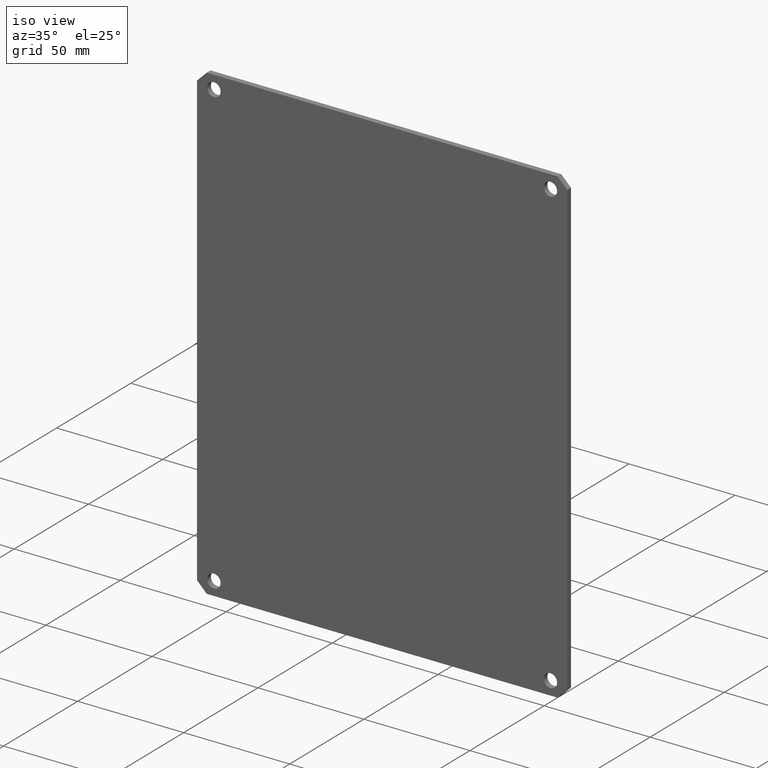
[diagram: clean part render]
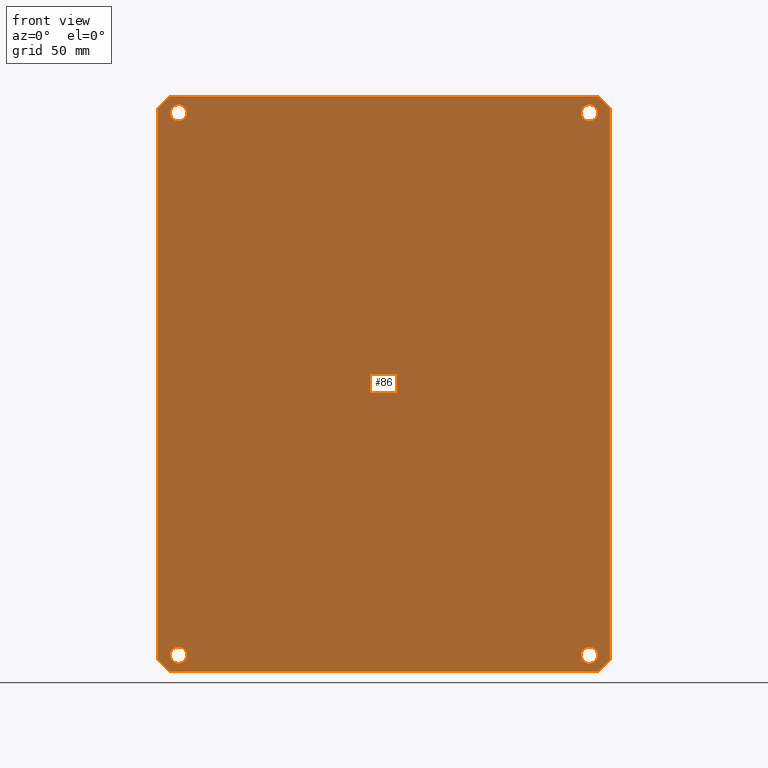
[diagram: tour spotlight — one face highlighted and labeled with its STEP entity id]
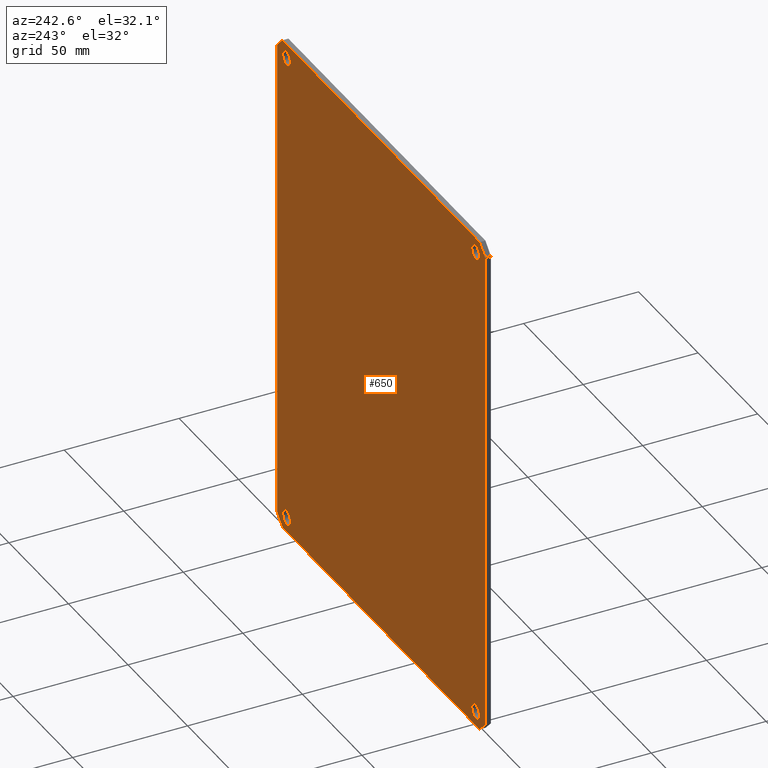
[diagram: tour spotlight — one face highlighted and labeled with its STEP entity id]
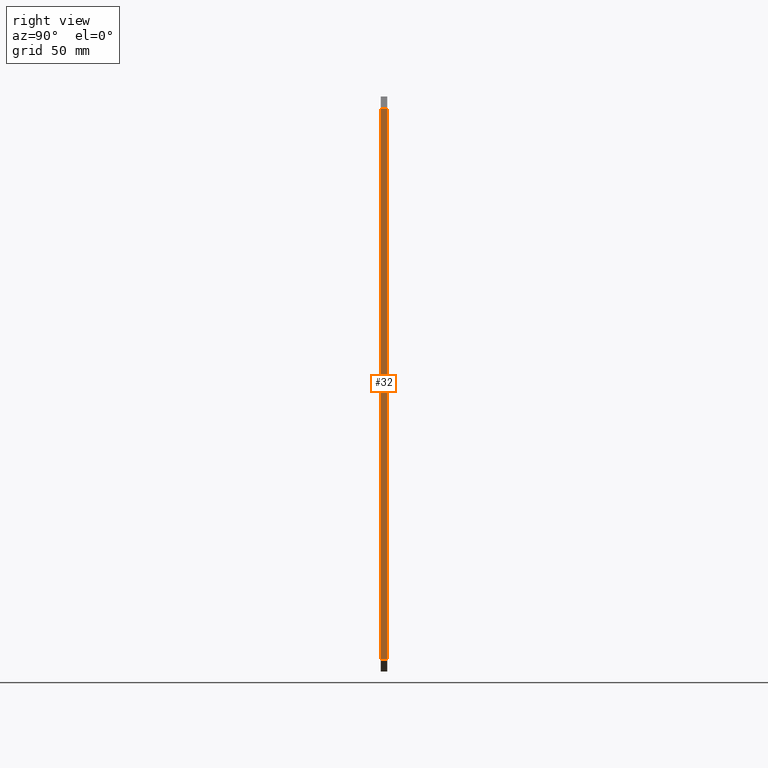
[diagram: tour spotlight — one face highlighted and labeled with its STEP entity id]
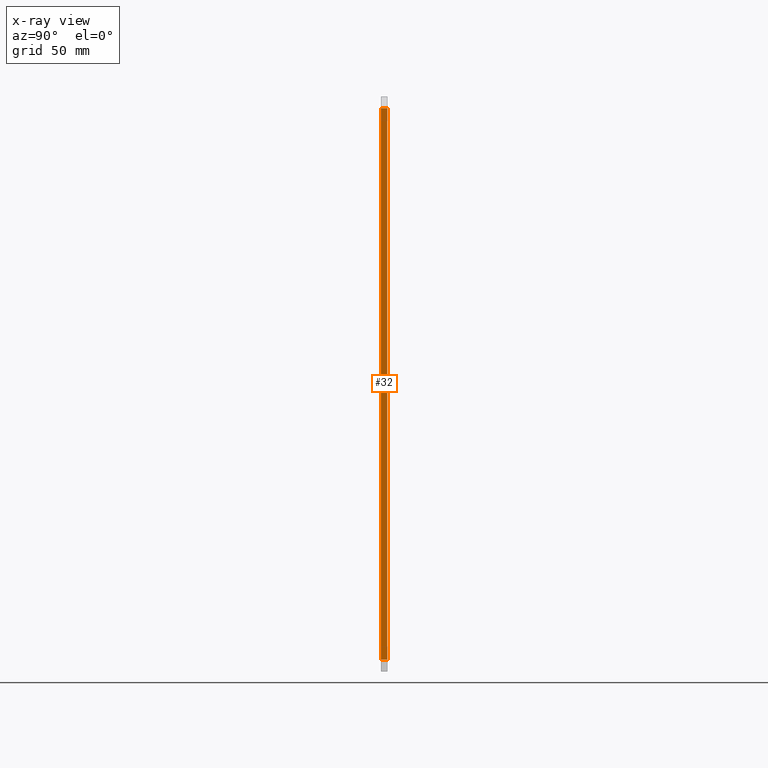
[diagram: x-ray of the same camera — body ghosted, this tour face saturated]
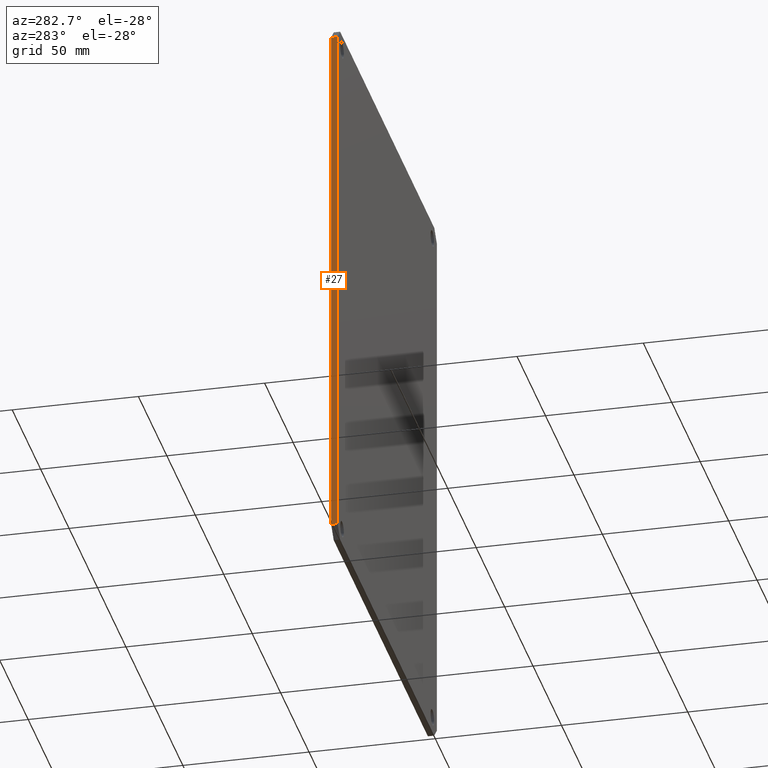
[diagram: tour spotlight — one face highlighted and labeled with its STEP entity id]
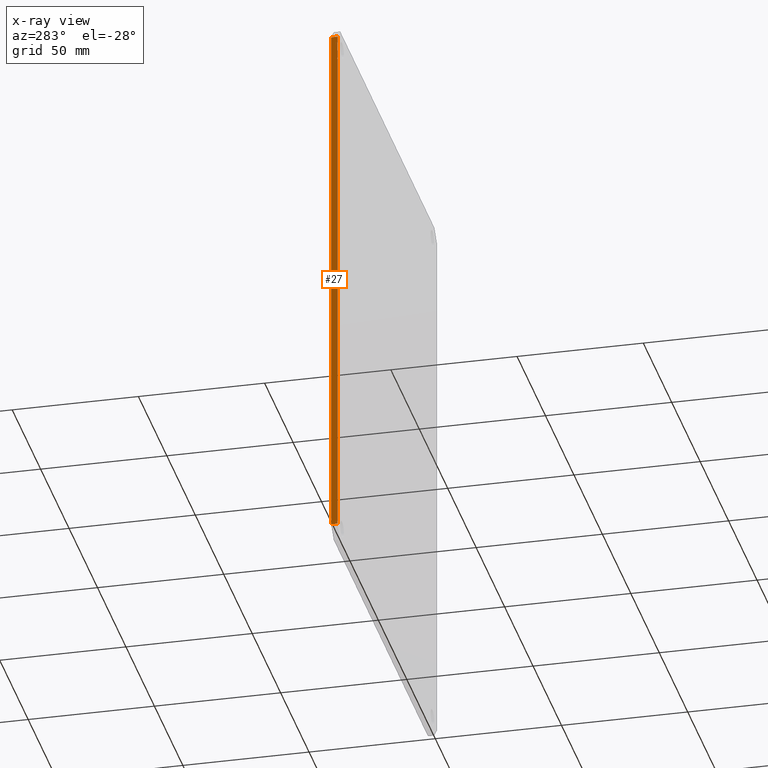
[diagram: x-ray of the same camera — body ghosted, this tour face saturated]
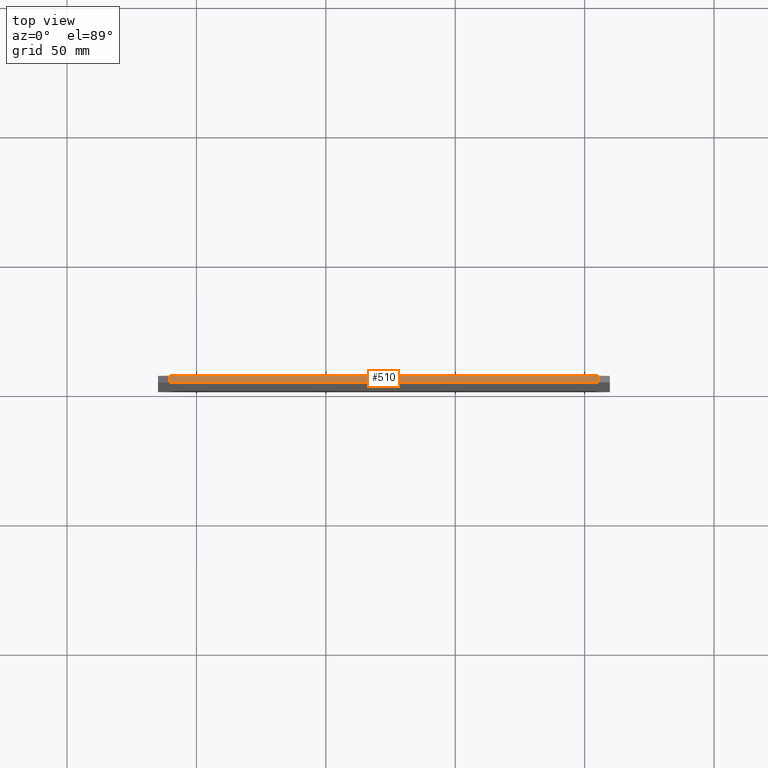
[diagram: tour spotlight — one face highlighted and labeled with its STEP entity id]
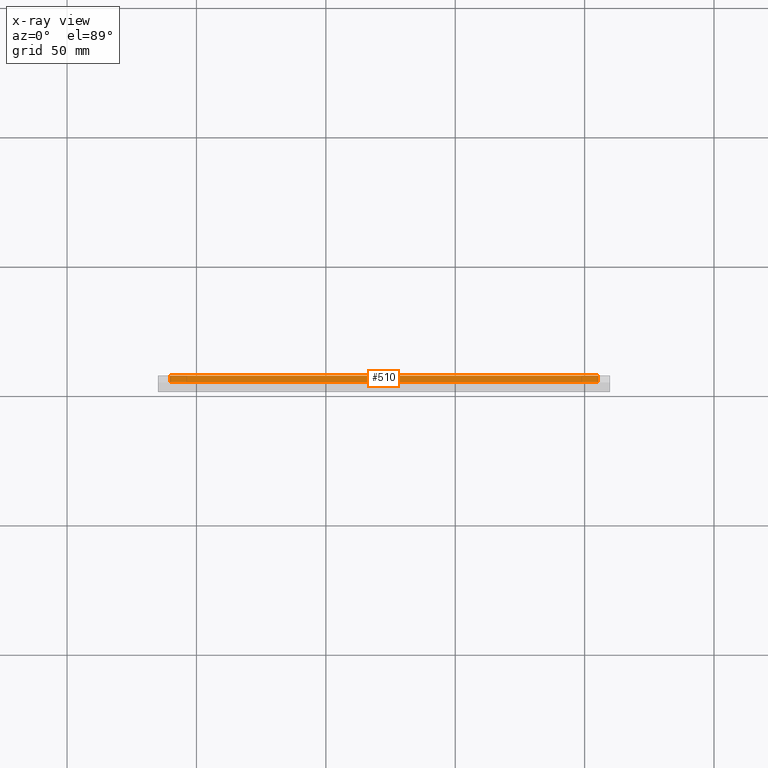
[diagram: x-ray of the same camera — body ghosted, this tour face saturated]
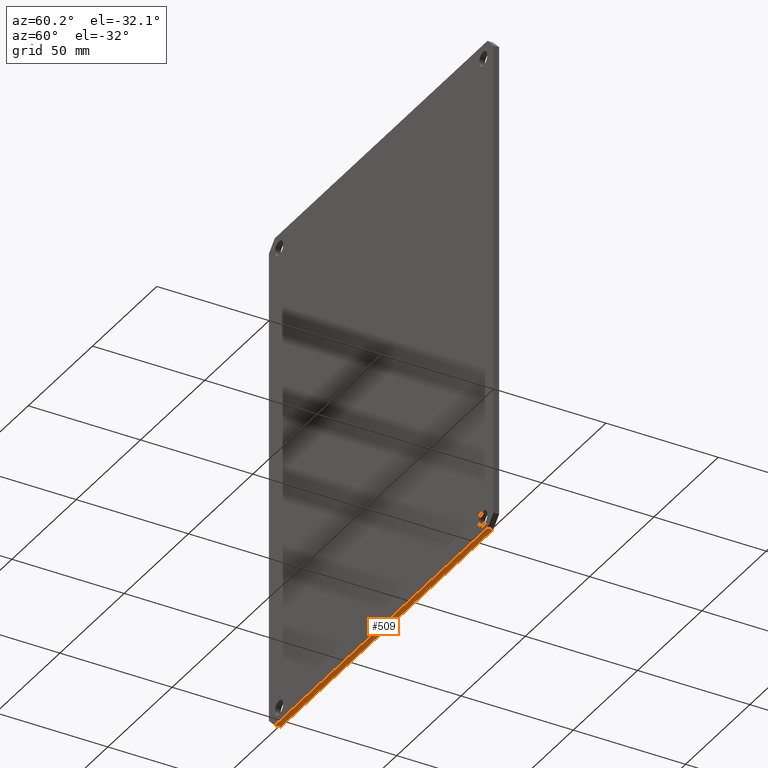
[diagram: tour spotlight — one face highlighted and labeled with its STEP entity id]
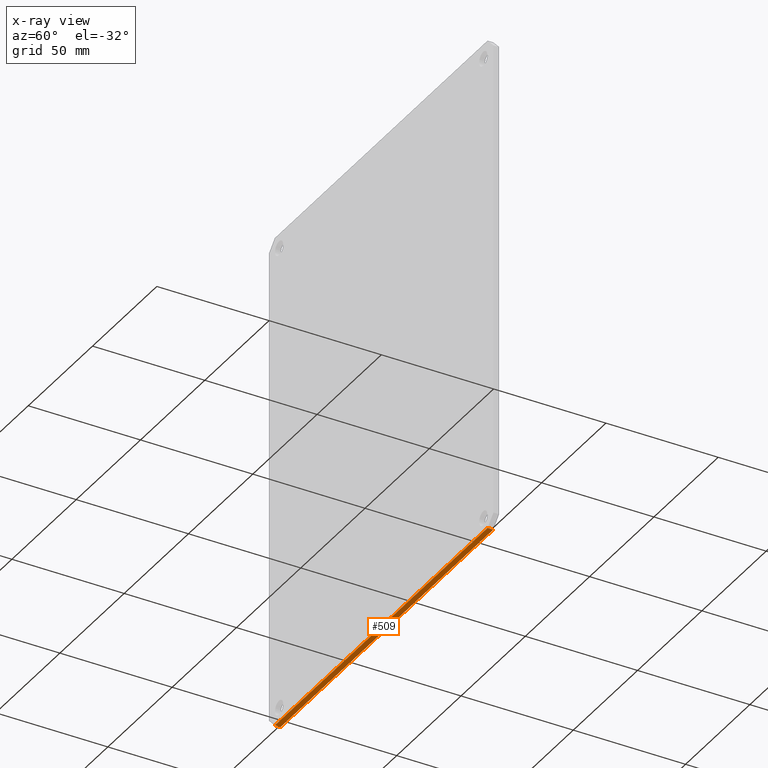
[diagram: x-ray of the same camera — body ghosted, this tour face saturated]
A machine part: a face-by-face anatomy tour. The part has 18 B-rep faces; the first image is the clean iso view, then the 6 largest visible faces are spotlighted one at a time (largest first), each with its STEP entity span.

Face 1 — front view, entity #86. In plain terms, the highlighted planar face has unit normal (0, -1, 0).
Definition (entity closure, byte-faithful):
#8 = DIRECTION ( 'NONE',  ( -0.0000000000000000000, -0.0000000000000000000, 1.000000000000000000 ) ) ;
#15 = DIRECTION ( 'NONE',  ( 0.7071067811865496800, -0.0000000000000000000, 0.7071067811865454600 ) ) ;
#19 = DIRECTION ( 'NONE',  ( 0.0000000000000000000, 0.0000000000000000000, 1.000000000000000000 ) ) ;
#20 = AXIS2_PLACEMENT_3D ( 'NONE', #60, #431, #108 ) ;
#34 = ORIENTED_EDGE ( 'NONE', *, *, #658, .T. ) ;
#36 = EDGE_CURVE ( 'NONE', #367, #304, #218, .T. ) ;
#37 = ORIENTED_EDGE ( 'NONE', *, *, #374, .T. ) ;
#45 = CIRCLE ( 'NONE', #355, 0.1249999999999993500 ) ;
#49 = EDGE_CURVE ( 'NONE', #240, #304, #359, .T. ) ;
#51 = CIRCLE ( 'NONE', #624, 0.1249999999999999000 ) ;
#52 = CARTESIAN_POINT ( 'NONE',  ( -6.177162840373422400, 0.06212389664218024400, 5.716470887727989900 ) ) ;
#54 = CARTESIAN_POINT ( 'NONE',  ( -6.489662840373424200, 0.06212389664218024400, -2.728529112272006300 ) ) ;
#55 = EDGE_LOOP ( 'NONE', ( #128, #194 ) ) ;
#60 = CARTESIAN_POINT ( 'NONE',  ( -6.177162840373422400, 0.06212389664218024400, -2.658529112272010100 ) ) ;
#68 = DIRECTION ( 'NONE',  ( 0.0000000000000000000, 1.000000000000000000, 0.0000000000000000000 ) ) ;
#69 = CARTESIAN_POINT ( 'NONE',  ( 0.07283715962657751100, 0.06212389664218024400, -2.533529112272010500 ) ) ;
#74 = DIRECTION ( 'NONE',  ( -0.7071067811865474600, -0.0000000000000000000, 0.7071067811865474600 ) ) ;
#78 = FACE_BOUND ( 'NONE', #187, .T. ) ;
#82 = ORIENTED_EDGE ( 'NONE', *, *, #383, .T. ) ;
#86 = ADVANCED_FACE ( 'NONE', ( #78, #450, #183, #581, #465 ), #257, .T. ) ;
#94 = DIRECTION ( 'NONE',  ( 0.7071067811865474600, -0.0000000000000000000, -0.7071067811865474600 ) ) ;
#96 = VERTEX_POINT ( 'NONE', #99 ) ;
#99 = CARTESIAN_POINT ( 'NONE',  ( 0.07283715962657753800, 0.06212389664218024400, 5.466470887727989900 ) ) ;
#100 = CARTESIAN_POINT ( 'NONE',  ( 0.07283715962657753800, 0.06212389664218024400, -2.783529112272010100 ) ) ;
#101 = AXIS2_PLACEMENT_3D ( 'NONE', #283, #638, #339 ) ;
#102 = CARTESIAN_POINT ( 'NONE',  ( -6.489662840373422400, 0.06212389664218024400, 5.841470887727989900 ) ) ;
#104 = DIRECTION ( 'NONE',  ( 0.0000000000000000000, 1.000000000000000000, 0.0000000000000000000 ) ) ;
#108 = DIRECTION ( 'NONE',  ( 0.0000000000000000000, 0.0000000000000000000, 1.000000000000000000 ) ) ;
#112 = DIRECTION ( 'NONE',  ( -0.7071067811865496800, -0.0000000000000000000, -0.7071067811865454600 ) ) ;
#114 = CARTESIAN_POINT ( 'NONE',  ( 0.07283715962657751100, 0.06212389664218024400, -2.658529112272010100 ) ) ;
#115 = LINE ( 'NONE', #102, #388 ) ;
#119 = CARTESIAN_POINT ( 'NONE',  ( -6.309662840373421800, 0.06212389664218024400, 5.841470887727991700 ) ) ;
#121 = CARTESIAN_POINT ( 'NONE',  ( 0.2053371596265717900, 0.06212389664218024400, 5.841470887727991700 ) ) ;
#128 = ORIENTED_EDGE ( 'NONE', *, *, #587, .T. ) ;
#139 = ORIENTED_EDGE ( 'NONE', *, *, #241, .F. ) ;
#141 = VERTEX_POINT ( 'NONE', #419 ) ;
#144 = CARTESIAN_POINT ( 'NONE',  ( -6.399662840373422600, 0.06212389664218024400, -2.818529112272009800 ) ) ;
#148 = CARTESIAN_POINT ( 'NONE',  ( -6.489662840373422400, 0.06212389664218024400, -2.908529112272010100 ) ) ;
#153 = ORIENTED_EDGE ( 'NONE', *, *, #618, .F. ) ;
#155 = AXIS2_PLACEMENT_3D ( 'NONE', #114, #488, #166 ) ;
#159 = CARTESIAN_POINT ( 'NONE',  ( -6.489662840373422400, 0.06212389664218024400, 5.841470887727989900 ) ) ;
#166 = DIRECTION ( 'NONE',  ( 0.0000000000000000000, 0.0000000000000000000, 1.000000000000000000 ) ) ;
#167 = DIRECTION ( 'NONE',  ( 0.0000000000000000000, 1.000000000000000000, 0.0000000000000000000 ) ) ;
#171 = AXIS2_PLACEMENT_3D ( 'NONE', #384, #68, #435 ) ;
#173 = CARTESIAN_POINT ( 'NONE',  ( 1.232837159626575500, 0.06212389664218024400, 4.813970887727988300 ) ) ;
#183 = FACE_BOUND ( 'NONE', #294, .T. ) ;
#187 = EDGE_LOOP ( 'NONE', ( #82, #37 ) ) ;
#194 = ORIENTED_EDGE ( 'NONE', *, *, #351, .T. ) ;
#195 = VERTEX_POINT ( 'NONE', #100 ) ;
#218 = LINE ( 'NONE', #360, #614 ) ;
#224 = CARTESIAN_POINT ( 'NONE',  ( -6.177162840373422400, 0.06212389664218024400, -2.533529112272010500 ) ) ;
#225 = VERTEX_POINT ( 'NONE', #52 ) ;
#239 = CIRCLE ( 'NONE', #101, 0.1249999999999993500 ) ;
#240 = VERTEX_POINT ( 'NONE', #54 ) ;
#241 = EDGE_CURVE ( 'NONE', #441, #467, #115, .T. ) ;
#243 = ORIENTED_EDGE ( 'NONE', *, *, #648, .T. ) ;
#247 = AXIS2_PLACEMENT_3D ( 'NONE', #489, #167, #537 ) ;
#251 = EDGE_CURVE ( 'NONE', #96, #485, #259, .T. ) ;
#252 = CIRCLE ( 'NONE', #171, 0.1249999999999999000 ) ;
#257 = PLANE ( 'NONE',  #473 ) ;
#259 = CIRCLE ( 'NONE', #665, 0.1249999999999993500 ) ;
#260 = CARTESIAN_POINT ( 'NONE',  ( -6.177162840373422400, 0.06212389664218024400, -2.783529112272010100 ) ) ;
#265 = LINE ( 'NONE', #331, #651 ) ;
#273 = VERTEX_POINT ( 'NONE', #373 ) ;
#277 = CARTESIAN_POINT ( 'NONE',  ( 0.3853371596265775500, 0.06212389664218024400, 5.841470887727989900 ) ) ;
#283 = CARTESIAN_POINT ( 'NONE',  ( -6.177162840373422400, 0.06212389664218024400, 5.591470887727990800 ) ) ;
#289 = CIRCLE ( 'NONE', #155, 0.1249999999999999000 ) ;
#294 = EDGE_LOOP ( 'NONE', ( #533, #34 ) ) ;
#304 = VERTEX_POINT ( 'NONE', #627 ) ;
#311 = DIRECTION ( 'NONE',  ( 0.0000000000000000000, 0.0000000000000000000, 1.000000000000000000 ) ) ;
#322 = DIRECTION ( 'NONE',  ( 0.0000000000000000000, 0.0000000000000000000, -1.000000000000000000 ) ) ;
#324 = VECTOR ( 'NONE', #322, 39.37007874015748100 ) ;
#331 = CARTESIAN_POINT ( 'NONE',  ( -10.77466284037342500, 0.06212389664218024400, 1.376470887728016500 ) ) ;
#337 = EDGE_LOOP ( 'NONE', ( #411, #626 ) ) ;
#339 = DIRECTION ( 'NONE',  ( 0.0000000000000000000, 0.0000000000000000000, 1.000000000000000000 ) ) ;
#341 = DIRECTION ( 'NONE',  ( 0.0000000000000000000, 1.000000000000000000, 0.0000000000000000000 ) ) ;
#344 = CARTESIAN_POINT ( 'NONE',  ( 0.07283715962657751100, 0.06212389664218024400, -2.658529112272010100 ) ) ;
#348 = VECTOR ( 'NONE', #94, 39.37007874015748900 ) ;
#350 = ORIENTED_EDGE ( 'NONE', *, *, #530, .F. ) ;
#351 = EDGE_CURVE ( 'NONE', #526, #652, #252, .T. ) ;
#355 = AXIS2_PLACEMENT_3D ( 'NONE', #640, #341, #19 ) ;
#359 = LINE ( 'NONE', #144, #348 ) ;
#360 = CARTESIAN_POINT ( 'NONE',  ( -6.489662840373422400, 0.06212389664218024400, -2.908529112272010100 ) ) ;
#361 = VECTOR ( 'NONE', #15, 39.37007874015748100 ) ;
#366 = DIRECTION ( 'NONE',  ( 0.0000000000000000000, -0.0000000000000000000, -1.000000000000000000 ) ) ;
#367 = VERTEX_POINT ( 'NONE', #636 ) ;
#368 = EDGE_CURVE ( 'NONE', #367, #496, #644, .T. ) ;
#373 = CARTESIAN_POINT ( 'NONE',  ( 0.3853371596265775500, 0.06212389664218024400, 5.661470887727986700 ) ) ;
#374 = EDGE_CURVE ( 'NONE', #617, #225, #501, .T. ) ;
#383 = EDGE_CURVE ( 'NONE', #225, #617, #239, .T. ) ;
#384 = CARTESIAN_POINT ( 'NONE',  ( -6.177162840373422400, 0.06212389664218024400, -2.658529112272010100 ) ) ;
#388 = VECTOR ( 'NONE', #524, 39.37007874015748100 ) ;
#394 = CARTESIAN_POINT ( 'NONE',  ( 0.3853371596265786100, 0.06212389664218024400, -2.728529112272008600 ) ) ;
#407 = VECTOR ( 'NONE', #8, 39.37007874015748100 ) ;
#411 = ORIENTED_EDGE ( 'NONE', *, *, #452, .T. ) ;
#412 = ORIENTED_EDGE ( 'NONE', *, *, #36, .F. ) ;
#419 = CARTESIAN_POINT ( 'NONE',  ( -6.489662840373421600, 0.06212389664218024400, 5.661470887727992900 ) ) ;
#425 = CARTESIAN_POINT ( 'NONE',  ( 0.07283715962657751100, 0.06212389664218024400, 5.591470887727990800 ) ) ;
#431 = DIRECTION ( 'NONE',  ( 0.0000000000000000000, 1.000000000000000000, 0.0000000000000000000 ) ) ;
#435 = DIRECTION ( 'NONE',  ( 0.0000000000000000000, 0.0000000000000000000, 1.000000000000000000 ) ) ;
#440 = CIRCLE ( 'NONE', #20, 0.1249999999999999000 ) ;
#441 = VERTEX_POINT ( 'NONE', #119 ) ;
#450 = FACE_BOUND ( 'NONE', #337, .T. ) ;
#452 = EDGE_CURVE ( 'NONE', #485, #96, #45, .T. ) ;
#455 = LINE ( 'NONE', #277, #324 ) ;
#465 = FACE_OUTER_BOUND ( 'NONE', #668, .T. ) ;
#467 = VERTEX_POINT ( 'NONE', #121 ) ;
#468 = DIRECTION ( 'NONE',  ( 0.0000000000000000000, -1.000000000000000000, 0.0000000000000000000 ) ) ;
#470 = EDGE_CURVE ( 'NONE', #273, #467, #620, .T. ) ;
#473 = AXIS2_PLACEMENT_3D ( 'NONE', #148, #468, #366 ) ;
#477 = DIRECTION ( 'NONE',  ( 0.0000000000000000000, 0.0000000000000000000, 1.000000000000000000 ) ) ;
#485 = VERTEX_POINT ( 'NONE', #641 ) ;
#487 = CARTESIAN_POINT ( 'NONE',  ( -3.142162840373442700, 0.06212389664218024400, -6.256029112272009300 ) ) ;
#488 = DIRECTION ( 'NONE',  ( 0.0000000000000000000, 1.000000000000000000, 0.0000000000000000000 ) ) ;
#489 = CARTESIAN_POINT ( 'NONE',  ( -6.177162840373422400, 0.06212389664218024400, 5.591470887727990800 ) ) ;
#490 = VECTOR ( 'NONE', #74, 39.37007874015748900 ) ;
#496 = VERTEX_POINT ( 'NONE', #394 ) ;
#501 = CIRCLE ( 'NONE', #247, 0.1249999999999993500 ) ;
#520 = EDGE_CURVE ( 'NONE', #661, #195, #51, .T. ) ;
#524 = DIRECTION ( 'NONE',  ( 1.000000000000000000, 0.0000000000000000000, 0.0000000000000000000 ) ) ;
#526 = VERTEX_POINT ( 'NONE', #260 ) ;
#530 = EDGE_CURVE ( 'NONE', #273, #496, #455, .T. ) ;
#533 = ORIENTED_EDGE ( 'NONE', *, *, #520, .T. ) ;
#537 = DIRECTION ( 'NONE',  ( 0.0000000000000000000, 0.0000000000000000000, 1.000000000000000000 ) ) ;
#576 = ORIENTED_EDGE ( 'NONE', *, *, #470, .T. ) ;
#578 = ORIENTED_EDGE ( 'NONE', *, *, #49, .T. ) ;
#579 = CARTESIAN_POINT ( 'NONE',  ( -6.177162840373422400, 0.06212389664218024400, 5.466470887727989900 ) ) ;
#581 = FACE_BOUND ( 'NONE', #55, .T. ) ;
#587 = EDGE_CURVE ( 'NONE', #652, #526, #440, .T. ) ;
#606 = DIRECTION ( 'NONE',  ( 0.0000000000000000000, 1.000000000000000000, 0.0000000000000000000 ) ) ;
#613 = DIRECTION ( 'NONE',  ( -1.000000000000000000, -0.0000000000000000000, -0.0000000000000000000 ) ) ;
#614 = VECTOR ( 'NONE', #613, 39.37007874015748100 ) ;
#617 = VERTEX_POINT ( 'NONE', #579 ) ;
#618 = EDGE_CURVE ( 'NONE', #240, #141, #667, .T. ) ;
#620 = LINE ( 'NONE', #173, #490 ) ;
#624 = AXIS2_PLACEMENT_3D ( 'NONE', #344, #606, #311 ) ;
#626 = ORIENTED_EDGE ( 'NONE', *, *, #251, .T. ) ;
#627 = CARTESIAN_POINT ( 'NONE',  ( -6.309662840373421800, 0.06212389664218024400, -2.908529112272010100 ) ) ;
#635 = ORIENTED_EDGE ( 'NONE', *, *, #368, .T. ) ;
#636 = CARTESIAN_POINT ( 'NONE',  ( 0.2053371596265767300, 0.06212389664218024400, -2.908529112272010100 ) ) ;
#638 = DIRECTION ( 'NONE',  ( 0.0000000000000000000, 1.000000000000000000, 0.0000000000000000000 ) ) ;
#640 = CARTESIAN_POINT ( 'NONE',  ( 0.07283715962657751100, 0.06212389664218024400, 5.591470887727990800 ) ) ;
#641 = CARTESIAN_POINT ( 'NONE',  ( 0.07283715962657751100, 0.06212389664218024400, 5.716470887727989900 ) ) ;
#644 = LINE ( 'NONE', #487, #361 ) ;
#648 = EDGE_CURVE ( 'NONE', #441, #141, #265, .T. ) ;
#651 = VECTOR ( 'NONE', #112, 39.37007874015748100 ) ;
#652 = VERTEX_POINT ( 'NONE', #224 ) ;
#658 = EDGE_CURVE ( 'NONE', #195, #661, #289, .T. ) ;
#661 = VERTEX_POINT ( 'NONE', #69 ) ;
#665 = AXIS2_PLACEMENT_3D ( 'NONE', #425, #104, #477 ) ;
#667 = LINE ( 'NONE', #159, #407 ) ;
#668 = EDGE_LOOP ( 'NONE', ( #139, #243, #153, #578, #412, #635, #350, #576 ) ) ;

Face 2 — auxiliary view, entity #650. In plain terms, the highlighted planar face has unit normal (0, -1, 0).
Definition (entity closure, byte-faithful):
#6 = CARTESIAN_POINT ( 'NONE',  ( 0.07283715962657753800, 0.1621238966421802400, -2.783529112272010100 ) ) ;
#9 = VERTEX_POINT ( 'NONE', #307 ) ;
#18 = ORIENTED_EDGE ( 'NONE', *, *, #486, .F. ) ;
#23 = EDGE_CURVE ( 'NONE', #472, #560, #356, .T. ) ;
#24 = VERTEX_POINT ( 'NONE', #559 ) ;
#31 = EDGE_LOOP ( 'NONE', ( #352, #308 ) ) ;
#39 = DIRECTION ( 'NONE',  ( -0.7071067811865474600, -0.0000000000000000000, 0.7071067811865474600 ) ) ;
#44 = CARTESIAN_POINT ( 'NONE',  ( 0.07283715962657751100, 0.1621238966421802400, 5.591470887727990800 ) ) ;
#48 = DIRECTION ( 'NONE',  ( 1.000000000000000000, 0.0000000000000000000, 0.0000000000000000000 ) ) ;
#50 = CARTESIAN_POINT ( 'NONE',  ( -6.489662840373422400, 0.1621238966421802400, -2.728529112272009400 ) ) ;
#58 = DIRECTION ( 'NONE',  ( 0.0000000000000000000, 1.000000000000000000, 0.0000000000000000000 ) ) ;
#62 = VECTOR ( 'NONE', #39, 39.37007874015748900 ) ;
#63 = EDGE_CURVE ( 'NONE', #253, #147, #482, .T. ) ;
#65 = PLANE ( 'NONE',  #271 ) ;
#71 = LINE ( 'NONE', #442, #605 ) ;
#76 = EDGE_CURVE ( 'NONE', #386, #443, #198, .T. ) ;
#83 = EDGE_CURVE ( 'NONE', #147, #9, #602, .T. ) ;
#84 = CIRCLE ( 'NONE', #494, 0.1249999999999993500 ) ;
#91 = DIRECTION ( 'NONE',  ( 0.0000000000000000000, 1.000000000000000000, 0.0000000000000000000 ) ) ;
#95 = EDGE_CURVE ( 'NONE', #463, #24, #164, .T. ) ;
#97 = DIRECTION ( 'NONE',  ( 0.0000000000000000000, 0.0000000000000000000, 1.000000000000000000 ) ) ;
#98 = ORIENTED_EDGE ( 'NONE', *, *, #293, .F. ) ;
#110 = CARTESIAN_POINT ( 'NONE',  ( 0.3853371596265775500, 0.1621238966421802400, 5.841470887727989900 ) ) ;
#116 = AXIS2_PLACEMENT_3D ( 'NONE', #410, #91, #460 ) ;
#117 = CARTESIAN_POINT ( 'NONE',  ( 0.07283715962657751100, 0.1621238966421802400, 5.716470887727989900 ) ) ;
#120 = FACE_BOUND ( 'NONE', #31, .T. ) ;
#123 = ORIENTED_EDGE ( 'NONE', *, *, #200, .F. ) ;
#129 = ORIENTED_EDGE ( 'NONE', *, *, #492, .F. ) ;
#133 = CIRCLE ( 'NONE', #607, 0.1249999999999999000 ) ;
#147 = VERTEX_POINT ( 'NONE', #50 ) ;
#162 = DIRECTION ( 'NONE',  ( 0.0000000000000000000, 0.0000000000000000000, -1.000000000000000000 ) ) ;
#163 = CARTESIAN_POINT ( 'NONE',  ( -6.489662840373422400, 0.1621238966421802400, -2.908529112272010100 ) ) ;
#164 = LINE ( 'NONE', #418, #315 ) ;
#170 = EDGE_LOOP ( 'NONE', ( #129, #529 ) ) ;
#172 = CARTESIAN_POINT ( 'NONE',  ( 0.07283715962657753800, 0.1621238966421802400, 5.466470887727989900 ) ) ;
#175 = EDGE_CURVE ( 'NONE', #548, #313, #299, .T. ) ;
#176 = CARTESIAN_POINT ( 'NONE',  ( -6.177162840373422400, 0.1621238966421802400, -2.658529112272010100 ) ) ;
#179 = ORIENTED_EDGE ( 'NONE', *, *, #83, .T. ) ;
#181 = DIRECTION ( 'NONE',  ( 0.0000000000000000000, 0.0000000000000000000, 1.000000000000000000 ) ) ;
#188 = DIRECTION ( 'NONE',  ( -1.000000000000000000, -0.0000000000000000000, -0.0000000000000000000 ) ) ;
#189 = VERTEX_POINT ( 'NONE', #207 ) ;
#193 = CARTESIAN_POINT ( 'NONE',  ( -6.177162840373422400, 0.1621238966421802400, 5.591470887727990800 ) ) ;
#198 = CIRCLE ( 'NONE', #261, 0.1249999999999993500 ) ;
#199 = DIRECTION ( 'NONE',  ( 0.0000000000000000000, 1.000000000000000000, 0.0000000000000000000 ) ) ;
#200 = EDGE_CURVE ( 'NONE', #313, #548, #133, .T. ) ;
#202 = ORIENTED_EDGE ( 'NONE', *, *, #499, .T. ) ;
#204 = DIRECTION ( 'NONE',  ( 0.0000000000000000000, 0.0000000000000000000, 1.000000000000000000 ) ) ;
#207 = CARTESIAN_POINT ( 'NONE',  ( 0.3853371596265775500, 0.1621238966421802400, -2.728529112272010800 ) ) ;
#209 = CARTESIAN_POINT ( 'NONE',  ( -6.489662840373422400, 0.1621238966421802400, -2.908529112272010100 ) ) ;
#212 = DIRECTION ( 'NONE',  ( 0.7071067811865474600, -0.0000000000000000000, -0.7071067811865474600 ) ) ;
#229 = LINE ( 'NONE', #209, #353 ) ;
#233 = DIRECTION ( 'NONE',  ( 0.0000000000000000000, 1.000000000000000000, 0.0000000000000000000 ) ) ;
#235 = EDGE_LOOP ( 'NONE', ( #98, #18 ) ) ;
#245 = FACE_OUTER_BOUND ( 'NONE', #448, .T. ) ;
#253 = VERTEX_POINT ( 'NONE', #572 ) ;
#261 = AXIS2_PLACEMENT_3D ( 'NONE', #44, #414, #97 ) ;
#263 = DIRECTION ( 'NONE',  ( 0.0000000000000000000, 1.000000000000000000, 0.0000000000000000000 ) ) ;
#270 = LINE ( 'NONE', #110, #409 ) ;
#271 = AXIS2_PLACEMENT_3D ( 'NONE', #163, #584, #279 ) ;
#272 = DIRECTION ( 'NONE',  ( -0.7071067811865496800, -0.0000000000000000000, -0.7071067811865454600 ) ) ;
#278 = ORIENTED_EDGE ( 'NONE', *, *, #395, .T. ) ;
#279 = DIRECTION ( 'NONE',  ( 0.0000000000000000000, -0.0000000000000000000, -1.000000000000000000 ) ) ;
#286 = FACE_BOUND ( 'NONE', #462, .T. ) ;
#288 = VERTEX_POINT ( 'NONE', #527 ) ;
#290 = CARTESIAN_POINT ( 'NONE',  ( -6.177162840373422400, 0.1621238966421802400, 5.466470887727989900 ) ) ;
#293 = EDGE_CURVE ( 'NONE', #573, #320, #416, .T. ) ;
#299 = CIRCLE ( 'NONE', #508, 0.1249999999999999000 ) ;
#307 = CARTESIAN_POINT ( 'NONE',  ( -6.489662840373422400, 0.1621238966421802400, 5.661470887727992000 ) ) ;
#308 = ORIENTED_EDGE ( 'NONE', *, *, #461, .F. ) ;
#313 = VERTEX_POINT ( 'NONE', #6 ) ;
#315 = VECTOR ( 'NONE', #48, 39.37007874015748100 ) ;
#320 = VERTEX_POINT ( 'NONE', #380 ) ;
#323 = DIRECTION ( 'NONE',  ( 0.0000000000000000000, 1.000000000000000000, 0.0000000000000000000 ) ) ;
#326 = AXIS2_PLACEMENT_3D ( 'NONE', #176, #543, #181 ) ;
#328 = EDGE_CURVE ( 'NONE', #362, #189, #270, .T. ) ;
#332 = VECTOR ( 'NONE', #363, 39.37007874015748100 ) ;
#335 = CARTESIAN_POINT ( 'NONE',  ( 0.07283715962657751100, 0.1621238966421802400, -2.533529112272010500 ) ) ;
#352 = ORIENTED_EDGE ( 'NONE', *, *, #76, .F. ) ;
#353 = VECTOR ( 'NONE', #188, 39.37007874015748100 ) ;
#356 = CIRCLE ( 'NONE', #116, 0.1249999999999993500 ) ;
#362 = VERTEX_POINT ( 'NONE', #535 ) ;
#363 = DIRECTION ( 'NONE',  ( -0.0000000000000000000, -0.0000000000000000000, 1.000000000000000000 ) ) ;
#377 = CARTESIAN_POINT ( 'NONE',  ( -6.177162840373422400, 0.1621238966421802400, -2.658529112272010100 ) ) ;
#378 = CARTESIAN_POINT ( 'NONE',  ( 0.3853371596265775500, 0.1621238966421802400, -2.728529112272011200 ) ) ;
#380 = CARTESIAN_POINT ( 'NONE',  ( -6.177162840373422400, 0.1621238966421802400, -2.783529112272010100 ) ) ;
#386 = VERTEX_POINT ( 'NONE', #117 ) ;
#389 = DIRECTION ( 'NONE',  ( 0.7071067811865496800, -0.0000000000000000000, 0.7071067811865454600 ) ) ;
#392 = FACE_BOUND ( 'NONE', #170, .T. ) ;
#393 = ORIENTED_EDGE ( 'NONE', *, *, #175, .F. ) ;
#395 = EDGE_CURVE ( 'NONE', #9, #463, #616, .T. ) ;
#409 = VECTOR ( 'NONE', #162, 39.37007874015748100 ) ;
#410 = CARTESIAN_POINT ( 'NONE',  ( -6.177162840373422400, 0.1621238966421802400, 5.591470887727990800 ) ) ;
#414 = DIRECTION ( 'NONE',  ( 0.0000000000000000000, 1.000000000000000000, 0.0000000000000000000 ) ) ;
#416 = CIRCLE ( 'NONE', #568, 0.1249999999999999000 ) ;
#418 = CARTESIAN_POINT ( 'NONE',  ( -6.489662840373422400, 0.1621238966421802400, 5.841470887727989900 ) ) ;
#421 = VECTOR ( 'NONE', #272, 39.37007874015748100 ) ;
#424 = AXIS2_PLACEMENT_3D ( 'NONE', #541, #233, #595 ) ;
#430 = DIRECTION ( 'NONE',  ( 0.0000000000000000000, 0.0000000000000000000, 1.000000000000000000 ) ) ;
#442 = CARTESIAN_POINT ( 'NONE',  ( 0.2053371596265767300, 0.1621238966421802400, 5.841470887727989900 ) ) ;
#443 = VERTEX_POINT ( 'NONE', #172 ) ;
#447 = ORIENTED_EDGE ( 'NONE', *, *, #328, .T. ) ;
#448 = EDGE_LOOP ( 'NONE', ( #179, #278, #503, #202, #447, #657, #634, #478 ) ) ;
#460 = DIRECTION ( 'NONE',  ( 0.0000000000000000000, 0.0000000000000000000, 1.000000000000000000 ) ) ;
#461 = EDGE_CURVE ( 'NONE', #443, #386, #506, .T. ) ;
#462 = EDGE_LOOP ( 'NONE', ( #393, #123 ) ) ;
#463 = VERTEX_POINT ( 'NONE', #495 ) ;
#472 = VERTEX_POINT ( 'NONE', #290 ) ;
#478 = ORIENTED_EDGE ( 'NONE', *, *, #63, .T. ) ;
#482 = LINE ( 'NONE', #517, #62 ) ;
#484 = VECTOR ( 'NONE', #389, 39.37007874015748100 ) ;
#486 = EDGE_CURVE ( 'NONE', #320, #573, #603, .T. ) ;
#492 = EDGE_CURVE ( 'NONE', #560, #472, #84, .T. ) ;
#494 = AXIS2_PLACEMENT_3D ( 'NONE', #193, #199, #204 ) ;
#495 = CARTESIAN_POINT ( 'NONE',  ( -6.309662840373422700, 0.1621238966421802400, 5.841470887727989900 ) ) ;
#499 = EDGE_CURVE ( 'NONE', #24, #362, #71, .T. ) ;
#503 = ORIENTED_EDGE ( 'NONE', *, *, #95, .T. ) ;
#506 = CIRCLE ( 'NONE', #424, 0.1249999999999993500 ) ;
#507 = EDGE_CURVE ( 'NONE', #288, #253, #229, .T. ) ;
#508 = AXIS2_PLACEMENT_3D ( 'NONE', #621, #323, #664 ) ;
#517 = CARTESIAN_POINT ( 'NONE',  ( -6.309662840373421800, 0.1621238966421802400, -2.908529112272010100 ) ) ;
#525 = FACE_BOUND ( 'NONE', #235, .T. ) ;
#527 = CARTESIAN_POINT ( 'NONE',  ( 0.2053371596265778100, 0.1621238966421802400, -2.908529112272010100 ) ) ;
#529 = ORIENTED_EDGE ( 'NONE', *, *, #23, .F. ) ;
#535 = CARTESIAN_POINT ( 'NONE',  ( 0.3853371596265775500, 0.1621238966421802400, 5.661470887727989300 ) ) ;
#541 = CARTESIAN_POINT ( 'NONE',  ( 0.07283715962657751100, 0.1621238966421802400, 5.591470887727990800 ) ) ;
#543 = DIRECTION ( 'NONE',  ( 0.0000000000000000000, 1.000000000000000000, 0.0000000000000000000 ) ) ;
#548 = VERTEX_POINT ( 'NONE', #335 ) ;
#555 = LINE ( 'NONE', #378, #421 ) ;
#559 = CARTESIAN_POINT ( 'NONE',  ( 0.2053371596265750900, 0.1621238966421802400, 5.841470887727991700 ) ) ;
#560 = VERTEX_POINT ( 'NONE', #625 ) ;
#568 = AXIS2_PLACEMENT_3D ( 'NONE', #377, #58, #430 ) ;
#571 = CARTESIAN_POINT ( 'NONE',  ( 0.07283715962657751100, 0.1621238966421802400, -2.658529112272010100 ) ) ;
#572 = CARTESIAN_POINT ( 'NONE',  ( -6.309662840373421800, 0.1621238966421802400, -2.908529112272010100 ) ) ;
#573 = VERTEX_POINT ( 'NONE', #630 ) ;
#584 = DIRECTION ( 'NONE',  ( 0.0000000000000000000, -1.000000000000000000, 0.0000000000000000000 ) ) ;
#590 = CARTESIAN_POINT ( 'NONE',  ( -6.489662840373422400, 0.1621238966421802400, 5.661470887727992000 ) ) ;
#595 = DIRECTION ( 'NONE',  ( 0.0000000000000000000, 0.0000000000000000000, 1.000000000000000000 ) ) ;
#600 = EDGE_CURVE ( 'NONE', #189, #288, #555, .T. ) ;
#602 = LINE ( 'NONE', #660, #332 ) ;
#603 = CIRCLE ( 'NONE', #326, 0.1249999999999999000 ) ;
#605 = VECTOR ( 'NONE', #212, 39.37007874015748900 ) ;
#607 = AXIS2_PLACEMENT_3D ( 'NONE', #571, #263, #622 ) ;
#616 = LINE ( 'NONE', #590, #484 ) ;
#621 = CARTESIAN_POINT ( 'NONE',  ( 0.07283715962657751100, 0.1621238966421802400, -2.658529112272010100 ) ) ;
#622 = DIRECTION ( 'NONE',  ( 0.0000000000000000000, 0.0000000000000000000, 1.000000000000000000 ) ) ;
#625 = CARTESIAN_POINT ( 'NONE',  ( -6.177162840373422400, 0.1621238966421802400, 5.716470887727989900 ) ) ;
#630 = CARTESIAN_POINT ( 'NONE',  ( -6.177162840373422400, 0.1621238966421802400, -2.533529112272010500 ) ) ;
#634 = ORIENTED_EDGE ( 'NONE', *, *, #507, .T. ) ;
#650 = ADVANCED_FACE ( 'NONE', ( #392, #120, #286, #525, #245 ), #65, .F. ) ;
#657 = ORIENTED_EDGE ( 'NONE', *, *, #600, .T. ) ;
#660 = CARTESIAN_POINT ( 'NONE',  ( -6.489662840373422400, 0.1621238966421802400, 5.841470887727989900 ) ) ;
#664 = DIRECTION ( 'NONE',  ( 0.0000000000000000000, 0.0000000000000000000, 1.000000000000000000 ) ) ;

Face 3 — right view, entity #32. An x-ray twin of the same camera follows (body ghosted, this face saturated) — the face is partly hidden behind the body. In plain terms, the highlighted planar face has unit normal (1, -0, 0).
Definition (entity closure, byte-faithful):
#16 = CARTESIAN_POINT ( 'NONE',  ( 0.3853371596265775500, 0.06212389664218024400, 5.661470887727989300 ) ) ;
#32 = ADVANCED_FACE ( 'NONE', ( #397 ), #35, .T. ) ;
#35 = PLANE ( 'NONE',  #301 ) ;
#110 = CARTESIAN_POINT ( 'NONE',  ( 0.3853371596265775500, 0.1621238966421802400, 5.841470887727989900 ) ) ;
#118 = DIRECTION ( 'NONE',  ( 0.0000000000000000000, -1.000000000000000000, 0.0000000000000000000 ) ) ;
#122 = ORIENTED_EDGE ( 'NONE', *, *, #429, .T. ) ;
#137 = LINE ( 'NONE', #275, #152 ) ;
#152 = VECTOR ( 'NONE', #381, 39.37007874015748100 ) ;
#162 = DIRECTION ( 'NONE',  ( 0.0000000000000000000, 0.0000000000000000000, -1.000000000000000000 ) ) ;
#174 = ORIENTED_EDGE ( 'NONE', *, *, #328, .F. ) ;
#186 = VECTOR ( 'NONE', #118, 39.37007874015748100 ) ;
#189 = VERTEX_POINT ( 'NONE', #207 ) ;
#207 = CARTESIAN_POINT ( 'NONE',  ( 0.3853371596265775500, 0.1621238966421802400, -2.728529112272010800 ) ) ;
#221 = EDGE_LOOP ( 'NONE', ( #174, #122, #420, #521 ) ) ;
#270 = LINE ( 'NONE', #110, #409 ) ;
#273 = VERTEX_POINT ( 'NONE', #373 ) ;
#275 = CARTESIAN_POINT ( 'NONE',  ( 0.3853371596265775500, 0.06212389664218024400, -2.728529112272011200 ) ) ;
#277 = CARTESIAN_POINT ( 'NONE',  ( 0.3853371596265775500, 0.06212389664218024400, 5.841470887727989900 ) ) ;
#301 = AXIS2_PLACEMENT_3D ( 'NONE', #511, #310, #656 ) ;
#310 = DIRECTION ( 'NONE',  ( 1.000000000000000000, -0.0000000000000000000, 0.0000000000000000000 ) ) ;
#322 = DIRECTION ( 'NONE',  ( 0.0000000000000000000, 0.0000000000000000000, -1.000000000000000000 ) ) ;
#324 = VECTOR ( 'NONE', #322, 39.37007874015748100 ) ;
#328 = EDGE_CURVE ( 'NONE', #362, #189, #270, .T. ) ;
#349 = LINE ( 'NONE', #16, #186 ) ;
#362 = VERTEX_POINT ( 'NONE', #535 ) ;
#373 = CARTESIAN_POINT ( 'NONE',  ( 0.3853371596265775500, 0.06212389664218024400, 5.661470887727986700 ) ) ;
#381 = DIRECTION ( 'NONE',  ( 0.0000000000000000000, 1.000000000000000000, 0.0000000000000000000 ) ) ;
#394 = CARTESIAN_POINT ( 'NONE',  ( 0.3853371596265786100, 0.06212389664218024400, -2.728529112272008600 ) ) ;
#397 = FACE_OUTER_BOUND ( 'NONE', #221, .T. ) ;
#409 = VECTOR ( 'NONE', #162, 39.37007874015748100 ) ;
#420 = ORIENTED_EDGE ( 'NONE', *, *, #530, .T. ) ;
#429 = EDGE_CURVE ( 'NONE', #362, #273, #349, .T. ) ;
#455 = LINE ( 'NONE', #277, #324 ) ;
#496 = VERTEX_POINT ( 'NONE', #394 ) ;
#511 = CARTESIAN_POINT ( 'NONE',  ( 0.3853371596265775500, 0.06212389664218024400, 5.841470887727989900 ) ) ;
#521 = ORIENTED_EDGE ( 'NONE', *, *, #631, .T. ) ;
#530 = EDGE_CURVE ( 'NONE', #273, #496, #455, .T. ) ;
#535 = CARTESIAN_POINT ( 'NONE',  ( 0.3853371596265775500, 0.1621238966421802400, 5.661470887727989300 ) ) ;
#631 = EDGE_CURVE ( 'NONE', #496, #189, #137, .T. ) ;
#656 = DIRECTION ( 'NONE',  ( 0.0000000000000000000, 0.0000000000000000000, -1.000000000000000000 ) ) ;

Face 4 — auxiliary view, entity #27. An x-ray twin of the same camera follows (body ghosted, this face saturated) — the face is partly hidden behind the body. In plain terms, the highlighted planar face has unit normal (-1, 0, 0).
Definition (entity closure, byte-faithful):
#8 = DIRECTION ( 'NONE',  ( -0.0000000000000000000, -0.0000000000000000000, 1.000000000000000000 ) ) ;
#9 = VERTEX_POINT ( 'NONE', #307 ) ;
#14 = EDGE_CURVE ( 'NONE', #141, #9, #75, .T. ) ;
#27 = ADVANCED_FACE ( 'NONE', ( #216 ), #142, .T. ) ;
#33 = CARTESIAN_POINT ( 'NONE',  ( -6.489662840373422400, 0.06212389664218024400, 5.841470887727989900 ) ) ;
#50 = CARTESIAN_POINT ( 'NONE',  ( -6.489662840373422400, 0.1621238966421802400, -2.728529112272009400 ) ) ;
#54 = CARTESIAN_POINT ( 'NONE',  ( -6.489662840373424200, 0.06212389664218024400, -2.728529112272006300 ) ) ;
#72 = DIRECTION ( 'NONE',  ( 0.0000000000000000000, -1.000000000000000000, 0.0000000000000000000 ) ) ;
#75 = LINE ( 'NONE', #610, #611 ) ;
#80 = LINE ( 'NONE', #230, #633 ) ;
#83 = EDGE_CURVE ( 'NONE', #147, #9, #602, .T. ) ;
#93 = ORIENTED_EDGE ( 'NONE', *, *, #403, .T. ) ;
#141 = VERTEX_POINT ( 'NONE', #419 ) ;
#142 = PLANE ( 'NONE',  #228 ) ;
#147 = VERTEX_POINT ( 'NONE', #50 ) ;
#159 = CARTESIAN_POINT ( 'NONE',  ( -6.489662840373422400, 0.06212389664218024400, 5.841470887727989900 ) ) ;
#196 = DIRECTION ( 'NONE',  ( 0.0000000000000000000, 0.0000000000000000000, 1.000000000000000000 ) ) ;
#216 = FACE_OUTER_BOUND ( 'NONE', #512, .T. ) ;
#228 = AXIS2_PLACEMENT_3D ( 'NONE', #33, #513, #196 ) ;
#230 = CARTESIAN_POINT ( 'NONE',  ( -6.489662840373422400, 0.06212389664218024400, -2.728529112272009400 ) ) ;
#240 = VERTEX_POINT ( 'NONE', #54 ) ;
#250 = DIRECTION ( 'NONE',  ( 0.0000000000000000000, 1.000000000000000000, 0.0000000000000000000 ) ) ;
#297 = ORIENTED_EDGE ( 'NONE', *, *, #14, .T. ) ;
#307 = CARTESIAN_POINT ( 'NONE',  ( -6.489662840373422400, 0.1621238966421802400, 5.661470887727992000 ) ) ;
#332 = VECTOR ( 'NONE', #363, 39.37007874015748100 ) ;
#363 = DIRECTION ( 'NONE',  ( -0.0000000000000000000, -0.0000000000000000000, 1.000000000000000000 ) ) ;
#403 = EDGE_CURVE ( 'NONE', #147, #240, #80, .T. ) ;
#407 = VECTOR ( 'NONE', #8, 39.37007874015748100 ) ;
#419 = CARTESIAN_POINT ( 'NONE',  ( -6.489662840373421600, 0.06212389664218024400, 5.661470887727992900 ) ) ;
#454 = ORIENTED_EDGE ( 'NONE', *, *, #618, .T. ) ;
#512 = EDGE_LOOP ( 'NONE', ( #454, #297, #518, #93 ) ) ;
#513 = DIRECTION ( 'NONE',  ( -1.000000000000000000, 0.0000000000000000000, 0.0000000000000000000 ) ) ;
#518 = ORIENTED_EDGE ( 'NONE', *, *, #83, .F. ) ;
#602 = LINE ( 'NONE', #660, #332 ) ;
#610 = CARTESIAN_POINT ( 'NONE',  ( -6.489662840373422400, 0.06212389664218024400, 5.661470887727992000 ) ) ;
#611 = VECTOR ( 'NONE', #250, 39.37007874015748100 ) ;
#618 = EDGE_CURVE ( 'NONE', #240, #141, #667, .T. ) ;
#633 = VECTOR ( 'NONE', #72, 39.37007874015748100 ) ;
#660 = CARTESIAN_POINT ( 'NONE',  ( -6.489662840373422400, 0.1621238966421802400, 5.841470887727989900 ) ) ;
#667 = LINE ( 'NONE', #159, #407 ) ;

Face 5 — top view, entity #510. An x-ray twin of the same camera follows (body ghosted, this face saturated) — the face is partly hidden behind the body. In plain terms, the highlighted planar face has unit normal (0, 0, 1).
Definition (entity closure, byte-faithful):
#10 = ORIENTED_EDGE ( 'NONE', *, *, #161, .T. ) ;
#12 = LINE ( 'NONE', #469, #149 ) ;
#24 = VERTEX_POINT ( 'NONE', #559 ) ;
#48 = DIRECTION ( 'NONE',  ( 1.000000000000000000, 0.0000000000000000000, 0.0000000000000000000 ) ) ;
#64 = DIRECTION ( 'NONE',  ( 0.0000000000000000000, 1.000000000000000000, 0.0000000000000000000 ) ) ;
#95 = EDGE_CURVE ( 'NONE', #463, #24, #164, .T. ) ;
#102 = CARTESIAN_POINT ( 'NONE',  ( -6.489662840373422400, 0.06212389664218024400, 5.841470887727989900 ) ) ;
#115 = LINE ( 'NONE', #102, #388 ) ;
#119 = CARTESIAN_POINT ( 'NONE',  ( -6.309662840373421800, 0.06212389664218024400, 5.841470887727991700 ) ) ;
#121 = CARTESIAN_POINT ( 'NONE',  ( 0.2053371596265717900, 0.06212389664218024400, 5.841470887727991700 ) ) ;
#145 = ORIENTED_EDGE ( 'NONE', *, *, #241, .T. ) ;
#149 = VECTOR ( 'NONE', #370, 39.37007874015748100 ) ;
#161 = EDGE_CURVE ( 'NONE', #463, #441, #12, .T. ) ;
#164 = LINE ( 'NONE', #418, #315 ) ;
#206 = FACE_OUTER_BOUND ( 'NONE', #596, .T. ) ;
#222 = CARTESIAN_POINT ( 'NONE',  ( -6.489662840373422400, 0.06212389664218024400, 5.841470887727989900 ) ) ;
#241 = EDGE_CURVE ( 'NONE', #441, #467, #115, .T. ) ;
#264 = PLANE ( 'NONE',  #653 ) ;
#267 = DIRECTION ( 'NONE',  ( 0.0000000000000000000, 0.0000000000000000000, 1.000000000000000000 ) ) ;
#274 = DIRECTION ( 'NONE',  ( 1.000000000000000000, 0.0000000000000000000, -0.0000000000000000000 ) ) ;
#315 = VECTOR ( 'NONE', #48, 39.37007874015748100 ) ;
#316 = EDGE_CURVE ( 'NONE', #467, #24, #654, .T. ) ;
#370 = DIRECTION ( 'NONE',  ( 0.0000000000000000000, -1.000000000000000000, 0.0000000000000000000 ) ) ;
#382 = ORIENTED_EDGE ( 'NONE', *, *, #316, .T. ) ;
#388 = VECTOR ( 'NONE', #524, 39.37007874015748100 ) ;
#418 = CARTESIAN_POINT ( 'NONE',  ( -6.489662840373422400, 0.1621238966421802400, 5.841470887727989900 ) ) ;
#441 = VERTEX_POINT ( 'NONE', #119 ) ;
#463 = VERTEX_POINT ( 'NONE', #495 ) ;
#467 = VERTEX_POINT ( 'NONE', #121 ) ;
#469 = CARTESIAN_POINT ( 'NONE',  ( -6.309662840373422700, 0.06212389664218024400, 5.841470887727989900 ) ) ;
#495 = CARTESIAN_POINT ( 'NONE',  ( -6.309662840373422700, 0.1621238966421802400, 5.841470887727989900 ) ) ;
#510 = ADVANCED_FACE ( 'NONE', ( #206 ), #264, .T. ) ;
#524 = DIRECTION ( 'NONE',  ( 1.000000000000000000, 0.0000000000000000000, 0.0000000000000000000 ) ) ;
#528 = VECTOR ( 'NONE', #64, 39.37007874015748100 ) ;
#559 = CARTESIAN_POINT ( 'NONE',  ( 0.2053371596265750900, 0.1621238966421802400, 5.841470887727991700 ) ) ;
#570 = ORIENTED_EDGE ( 'NONE', *, *, #95, .F. ) ;
#596 = EDGE_LOOP ( 'NONE', ( #570, #10, #145, #382 ) ) ;
#632 = CARTESIAN_POINT ( 'NONE',  ( 0.2053371596265767300, 0.06212389664218024400, 5.841470887727989900 ) ) ;
#653 = AXIS2_PLACEMENT_3D ( 'NONE', #222, #267, #274 ) ;
#654 = LINE ( 'NONE', #632, #528 ) ;

Face 6 — auxiliary view, entity #509. An x-ray twin of the same camera follows (body ghosted, this face saturated) — the face is partly hidden behind the body. In plain terms, the highlighted planar face has unit normal (0, 0, -1).
Definition (entity closure, byte-faithful):
#36 = EDGE_CURVE ( 'NONE', #367, #304, #218, .T. ) ;
#89 = ORIENTED_EDGE ( 'NONE', *, *, #36, .T. ) ;
#107 = VECTOR ( 'NONE', #575, 39.37007874015748100 ) ;
#178 = ORIENTED_EDGE ( 'NONE', *, *, #507, .F. ) ;
#188 = DIRECTION ( 'NONE',  ( -1.000000000000000000, -0.0000000000000000000, -0.0000000000000000000 ) ) ;
#190 = PLANE ( 'NONE',  #594 ) ;
#191 = FACE_OUTER_BOUND ( 'NONE', #400, .T. ) ;
#208 = CARTESIAN_POINT ( 'NONE',  ( -6.309662840373421800, 0.06212389664218024400, -2.908529112272010100 ) ) ;
#209 = CARTESIAN_POINT ( 'NONE',  ( -6.489662840373422400, 0.1621238966421802400, -2.908529112272010100 ) ) ;
#213 = EDGE_CURVE ( 'NONE', #304, #253, #662, .T. ) ;
#218 = LINE ( 'NONE', #360, #614 ) ;
#229 = LINE ( 'NONE', #209, #353 ) ;
#242 = CARTESIAN_POINT ( 'NONE',  ( -6.489662840373422400, 0.06212389664218024400, -2.908529112272010100 ) ) ;
#244 = DIRECTION ( 'NONE',  ( 0.0000000000000000000, 0.0000000000000000000, -1.000000000000000000 ) ) ;
#253 = VERTEX_POINT ( 'NONE', #572 ) ;
#258 = DIRECTION ( 'NONE',  ( -1.000000000000000000, 0.0000000000000000000, -0.0000000000000000000 ) ) ;
#288 = VERTEX_POINT ( 'NONE', #527 ) ;
#304 = VERTEX_POINT ( 'NONE', #627 ) ;
#343 = EDGE_CURVE ( 'NONE', #288, #367, #396, .T. ) ;
#353 = VECTOR ( 'NONE', #188, 39.37007874015748100 ) ;
#360 = CARTESIAN_POINT ( 'NONE',  ( -6.489662840373422400, 0.06212389664218024400, -2.908529112272010100 ) ) ;
#367 = VERTEX_POINT ( 'NONE', #636 ) ;
#396 = LINE ( 'NONE', #483, #107 ) ;
#400 = EDGE_LOOP ( 'NONE', ( #178, #545, #89, #659 ) ) ;
#402 = VECTOR ( 'NONE', #475, 39.37007874015748100 ) ;
#475 = DIRECTION ( 'NONE',  ( 0.0000000000000000000, 1.000000000000000000, 0.0000000000000000000 ) ) ;
#483 = CARTESIAN_POINT ( 'NONE',  ( 0.2053371596265778100, 0.06212389664218024400, -2.908529112272010100 ) ) ;
#507 = EDGE_CURVE ( 'NONE', #288, #253, #229, .T. ) ;
#509 = ADVANCED_FACE ( 'NONE', ( #191 ), #190, .T. ) ;
#527 = CARTESIAN_POINT ( 'NONE',  ( 0.2053371596265778100, 0.1621238966421802400, -2.908529112272010100 ) ) ;
#545 = ORIENTED_EDGE ( 'NONE', *, *, #343, .T. ) ;
#572 = CARTESIAN_POINT ( 'NONE',  ( -6.309662840373421800, 0.1621238966421802400, -2.908529112272010100 ) ) ;
#575 = DIRECTION ( 'NONE',  ( 0.0000000000000000000, -1.000000000000000000, 0.0000000000000000000 ) ) ;
#594 = AXIS2_PLACEMENT_3D ( 'NONE', #242, #244, #258 ) ;
#613 = DIRECTION ( 'NONE',  ( -1.000000000000000000, -0.0000000000000000000, -0.0000000000000000000 ) ) ;
#614 = VECTOR ( 'NONE', #613, 39.37007874015748100 ) ;
#627 = CARTESIAN_POINT ( 'NONE',  ( -6.309662840373421800, 0.06212389664218024400, -2.908529112272010100 ) ) ;
#636 = CARTESIAN_POINT ( 'NONE',  ( 0.2053371596265767300, 0.06212389664218024400, -2.908529112272010100 ) ) ;
#659 = ORIENTED_EDGE ( 'NONE', *, *, #213, .T. ) ;
#662 = LINE ( 'NONE', #208, #402 ) ;